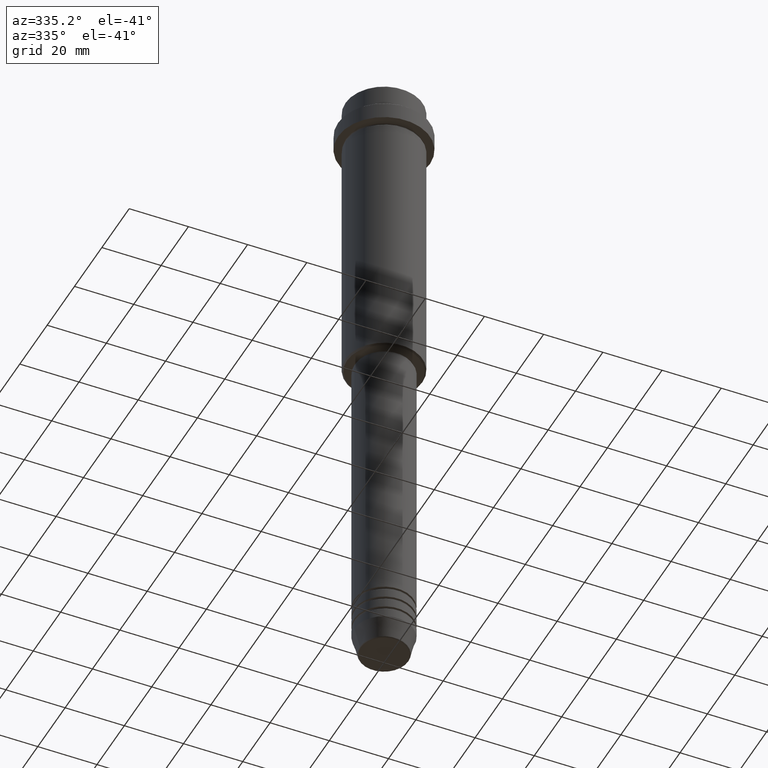
[diagram: clean part render]
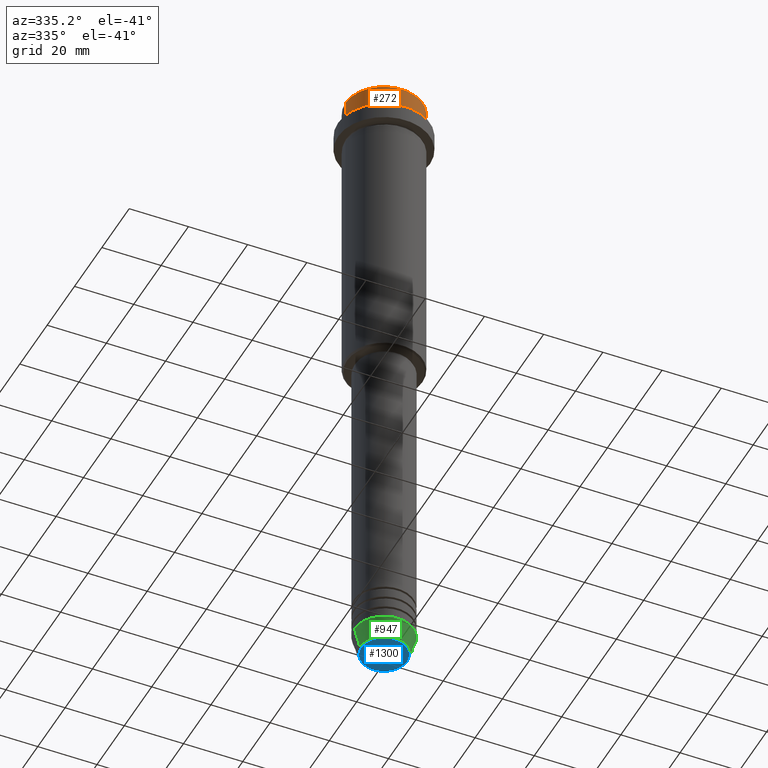
[diagram: same view with three faces highlighted in distinct colors, each labeled with its STEP entity id]
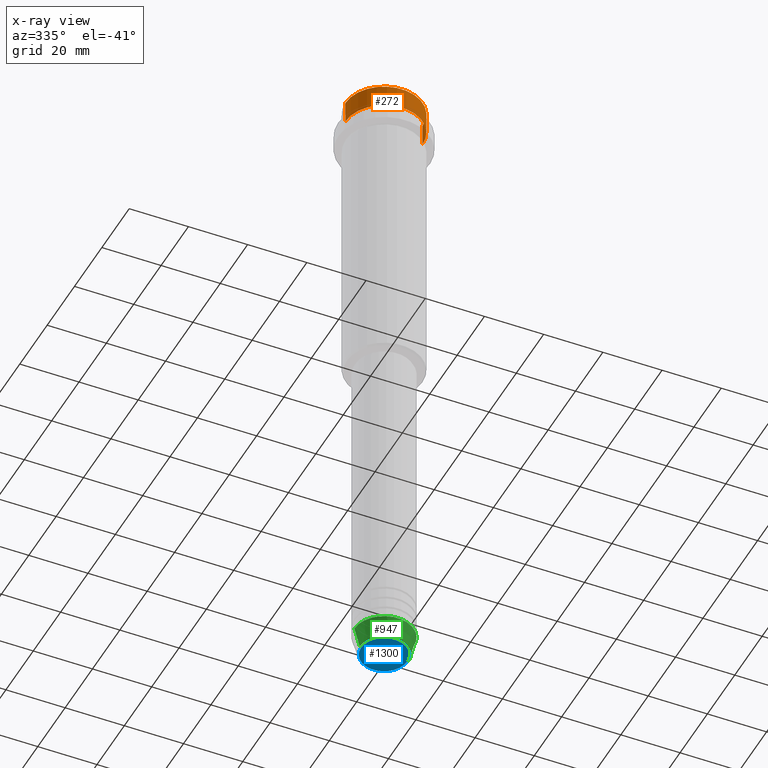
[diagram: x-ray of the same camera — body ghosted, the three highlighted faces saturated]
A machine part, auxiliary view with three faces highlighted in distinct colors.
The next image is the same camera in x-ray (body ghosted, the three faces saturated) — at least one of them is partly hidden behind the body in this view.
Their STEP definitions:

[orange] entity #272 — the highlighted cylindrical surface (partial cylindrical patch) has radius 13 mm, axis along (-0, -0, 1).
#21 = CYLINDRICAL_SURFACE ( 'NONE', #436, 12.99999999999999822 ) ;
#44 = DIRECTION ( 'NONE',  ( 0.000000000000000000, 0.000000000000000000, -1.000000000000000000 ) ) ;
#97 = CARTESIAN_POINT ( 'NONE',  ( 12.99999999999999822, 0.000000000000000000, -0.4999999999999483746 ) ) ;
#106 = LINE ( 'NONE', #1100, #296 ) ;
#116 = CARTESIAN_POINT ( 'NONE',  ( 12.99999999999999822, 0.000000000000000000, -7.999999999999998224 ) ) ;
#140 = CARTESIAN_POINT ( 'NONE',  ( 0.000000000000000000, 0.000000000000000000, 0.000000000000000000 ) ) ;
#206 = ORIENTED_EDGE ( 'NONE', *, *, #502, .T. ) ;
#262 = CARTESIAN_POINT ( 'NONE',  ( 0.000000000000000000, 0.000000000000000000, -7.999999999999998224 ) ) ;
#272 = ADVANCED_FACE ( 'NONE', ( #1207 ), #21, .T. ) ;
#296 = VECTOR ( 'NONE', #995, 1000.000000000000000 ) ;
#429 = CARTESIAN_POINT ( 'NONE',  ( -12.99999999999999822, 1.592040838891558898E-15, -7.999999999999998224 ) ) ;
#436 = AXIS2_PLACEMENT_3D ( 'NONE', #140, #484, #794 ) ;
#443 = EDGE_CURVE ( 'NONE', #1196, #968, #687, .T. ) ;
#484 = DIRECTION ( 'NONE',  ( -0.000000000000000000, -0.000000000000000000, 1.000000000000000000 ) ) ;
#502 = EDGE_CURVE ( 'NONE', #993, #774, #575, .T. ) ;
#556 = ORIENTED_EDGE ( 'NONE', *, *, #1109, .T. ) ;
#573 = CARTESIAN_POINT ( 'NONE',  ( -12.99999999999999822, 1.592040838891558898E-15, 0.000000000000000000 ) ) ;
#575 = CIRCLE ( 'NONE', #730, 12.99999999999999822 ) ;
#687 = CIRCLE ( 'NONE', #1253, 12.99999999999999822 ) ;
#691 = VECTOR ( 'NONE', #901, 1000.000000000000000 ) ;
#705 = CARTESIAN_POINT ( 'NONE',  ( 0.000000000000000000, 0.000000000000000000, -0.4999999999999483746 ) ) ;
#730 = AXIS2_PLACEMENT_3D ( 'NONE', #262, #746, #859 ) ;
#746 = DIRECTION ( 'NONE',  ( -0.000000000000000000, -0.000000000000000000, 1.000000000000000000 ) ) ;
#768 = LINE ( 'NONE', #573, #691 ) ;
#774 = VERTEX_POINT ( 'NONE', #116 ) ;
#794 = DIRECTION ( 'NONE',  ( 1.000000000000000000, 0.000000000000000000, 0.000000000000000000 ) ) ;
#857 = CARTESIAN_POINT ( 'NONE',  ( -12.99999999999999822, 1.592040838891558898E-15, -0.4999999999999483746 ) ) ;
#859 = DIRECTION ( 'NONE',  ( 1.000000000000000000, 0.000000000000000000, 0.000000000000000000 ) ) ;
#895 = EDGE_LOOP ( 'NONE', ( #935, #206, #556, #1179 ) ) ;
#901 = DIRECTION ( 'NONE',  ( -0.000000000000000000, -0.000000000000000000, 1.000000000000000000 ) ) ;
#935 = ORIENTED_EDGE ( 'NONE', *, *, #1090, .F. ) ;
#968 = VERTEX_POINT ( 'NONE', #857 ) ;
#993 = VERTEX_POINT ( 'NONE', #429 ) ;
#995 = DIRECTION ( 'NONE',  ( -0.000000000000000000, -0.000000000000000000, 1.000000000000000000 ) ) ;
#1047 = DIRECTION ( 'NONE',  ( 1.000000000000000000, 0.000000000000000000, 0.000000000000000000 ) ) ;
#1090 = EDGE_CURVE ( 'NONE', #993, #968, #768, .T. ) ;
#1100 = CARTESIAN_POINT ( 'NONE',  ( 12.99999999999999822, 0.000000000000000000, 0.000000000000000000 ) ) ;
#1109 = EDGE_CURVE ( 'NONE', #774, #1196, #106, .T. ) ;
#1179 = ORIENTED_EDGE ( 'NONE', *, *, #443, .T. ) ;
#1196 = VERTEX_POINT ( 'NONE', #97 ) ;
#1207 = FACE_OUTER_BOUND ( 'NONE', #895, .T. ) ;
#1253 = AXIS2_PLACEMENT_3D ( 'NONE', #705, #44, #1047 ) ;

[blue] entity #1300 — the highlighted planar face has unit normal (0, -0, 1).
#42 = CIRCLE ( 'NONE', #672, 7.740692158992664496 ) ;
#53 = CARTESIAN_POINT ( 'NONE',  ( 0.000000000000000000, 0.000000000000000000, -220.0000000000000284 ) ) ;
#203 = CARTESIAN_POINT ( 'NONE',  ( 0.000000000000000000, 0.000000000000000000, -220.0000000000000284 ) ) ;
#229 = ORIENTED_EDGE ( 'NONE', *, *, #1145, .T. ) ;
#234 = DIRECTION ( 'NONE',  ( 0.000000000000000000, 0.000000000000000000, -1.000000000000000000 ) ) ;
#297 = CARTESIAN_POINT ( 'NONE',  ( 7.740692158992664496, 0.000000000000000000, -220.0000000000000284 ) ) ;
#343 = CARTESIAN_POINT ( 'NONE',  ( 0.000000000000000000, 0.000000000000000000, -220.0000000000000284 ) ) ;
#381 = DIRECTION ( 'NONE',  ( 0.000000000000000000, -0.000000000000000000, 1.000000000000000000 ) ) ;
#488 = ORIENTED_EDGE ( 'NONE', *, *, #618, .T. ) ;
#542 = DIRECTION ( 'NONE',  ( 1.000000000000000000, 0.000000000000000000, 0.000000000000000000 ) ) ;
#543 = VERTEX_POINT ( 'NONE', #297 ) ;
#618 = EDGE_CURVE ( 'NONE', #543, #766, #1046, .T. ) ;
#672 = AXIS2_PLACEMENT_3D ( 'NONE', #343, #234, #778 ) ;
#766 = VERTEX_POINT ( 'NONE', #992 ) ;
#778 = DIRECTION ( 'NONE',  ( 1.000000000000000000, 0.000000000000000000, 0.000000000000000000 ) ) ;
#873 = AXIS2_PLACEMENT_3D ( 'NONE', #203, #1079, #542 ) ;
#931 = PLANE ( 'NONE',  #1186 ) ;
#937 = DIRECTION ( 'NONE',  ( 1.000000000000000000, 0.000000000000000000, 0.000000000000000000 ) ) ;
#992 = CARTESIAN_POINT ( 'NONE',  ( -7.740692158992664496, 9.775343368540045052E-16, -220.0000000000000284 ) ) ;
#1046 = CIRCLE ( 'NONE', #873, 7.740692158992664496 ) ;
#1079 = DIRECTION ( 'NONE',  ( 0.000000000000000000, 0.000000000000000000, -1.000000000000000000 ) ) ;
#1133 = FACE_OUTER_BOUND ( 'NONE', #1220, .T. ) ;
#1145 = EDGE_CURVE ( 'NONE', #766, #543, #42, .T. ) ;
#1186 = AXIS2_PLACEMENT_3D ( 'NONE', #53, #381, #937 ) ;
#1220 = EDGE_LOOP ( 'NONE', ( #488, #229 ) ) ;
#1300 = ADVANCED_FACE ( 'NONE', ( #1133 ), #931, .F. ) ;

[green] entity #947 — the highlighted conical surface has half-angle 15 deg.
#52 = EDGE_CURVE ( 'NONE', #1033, #1369, #281, .T. ) ;
#72 = DIRECTION ( 'NONE',  ( -0.000000000000000000, -0.000000000000000000, 1.000000000000000000 ) ) ;
#100 = CARTESIAN_POINT ( 'NONE',  ( -10.00000000000000000, 1.224646799147353256E-15, -213.0000000000000284 ) ) ;
#113 = ORIENTED_EDGE ( 'NONE', *, *, #754, .F. ) ;
#120 = ORIENTED_EDGE ( 'NONE', *, *, #52, .T. ) ;
#175 = CIRCLE ( 'NONE', #978, 8.223655072137193045 ) ;
#176 = DIRECTION ( 'NONE',  ( 1.000000000000000000, 0.000000000000000000, 0.000000000000000000 ) ) ;
#192 = EDGE_CURVE ( 'NONE', #243, #1033, #175, .T. ) ;
#243 = VERTEX_POINT ( 'NONE', #246 ) ;
#246 = CARTESIAN_POINT ( 'NONE',  ( -8.223655072137193045, 1.115877042642912251E-15, -219.6294095225512990 ) ) ;
#281 = LINE ( 'NONE', #943, #710 ) ;
#439 = DIRECTION ( 'NONE',  ( 1.000000000000000000, 0.000000000000000000, 0.000000000000000000 ) ) ;
#528 = AXIS2_PLACEMENT_3D ( 'NONE', #1056, #72, #439 ) ;
#577 = AXIS2_PLACEMENT_3D ( 'NONE', #954, #737, #176 ) ;
#630 = ORIENTED_EDGE ( 'NONE', *, *, #192, .T. ) ;
#645 = CONICAL_SURFACE ( 'NONE', #528, 10.00000000000000000, 0.2617993877991491303 ) ;
#710 = VECTOR ( 'NONE', #1270, 1000.000000000000114 ) ;
#737 = DIRECTION ( 'NONE',  ( -0.000000000000000000, -0.000000000000000000, 1.000000000000000000 ) ) ;
#744 = CARTESIAN_POINT ( 'NONE',  ( 8.223655072137193045, 0.000000000000000000, -219.6294095225512990 ) ) ;
#754 = EDGE_CURVE ( 'NONE', #243, #1280, #1006, .T. ) ;
#760 = CARTESIAN_POINT ( 'NONE',  ( 0.000000000000000000, 0.000000000000000000, -219.6294095225512990 ) ) ;
#811 = CIRCLE ( 'NONE', #577, 10.00000000000000000 ) ;
#936 = EDGE_CURVE ( 'NONE', #1280, #1369, #811, .T. ) ;
#943 = CARTESIAN_POINT ( 'NONE',  ( 10.00000000000000000, 0.000000000000000000, -213.0000000000000284 ) ) ;
#947 = ADVANCED_FACE ( 'NONE', ( #1391 ), #645, .T. ) ;
#954 = CARTESIAN_POINT ( 'NONE',  ( 0.000000000000000000, 0.000000000000000000, -213.0000000000000284 ) ) ;
#965 = DIRECTION ( 'NONE',  ( 1.000000000000000000, 0.000000000000000000, 0.000000000000000000 ) ) ;
#978 = AXIS2_PLACEMENT_3D ( 'NONE', #760, #1088, #965 ) ;
#984 = DIRECTION ( 'NONE',  ( -0.2588190451025205174, 3.169619151431761243E-17, 0.9659258262890684232 ) ) ;
#1006 = LINE ( 'NONE', #100, #1209 ) ;
#1033 = VERTEX_POINT ( 'NONE', #744 ) ;
#1056 = CARTESIAN_POINT ( 'NONE',  ( 0.000000000000000000, 0.000000000000000000, -213.0000000000000284 ) ) ;
#1088 = DIRECTION ( 'NONE',  ( -0.000000000000000000, -0.000000000000000000, 1.000000000000000000 ) ) ;
#1144 = CARTESIAN_POINT ( 'NONE',  ( 10.00000000000000000, 0.000000000000000000, -213.0000000000000284 ) ) ;
#1165 = ORIENTED_EDGE ( 'NONE', *, *, #936, .F. ) ;
#1209 = VECTOR ( 'NONE', #984, 1000.000000000000114 ) ;
#1270 = DIRECTION ( 'NONE',  ( 0.2588190451025205174, 0.000000000000000000, 0.9659258262890684232 ) ) ;
#1280 = VERTEX_POINT ( 'NONE', #1356 ) ;
#1354 = EDGE_LOOP ( 'NONE', ( #113, #630, #120, #1165 ) ) ;
#1356 = CARTESIAN_POINT ( 'NONE',  ( -10.00000000000000000, 1.224646799147353256E-15, -213.0000000000000284 ) ) ;
#1369 = VERTEX_POINT ( 'NONE', #1144 ) ;
#1391 = FACE_OUTER_BOUND ( 'NONE', #1354, .T. ) ;